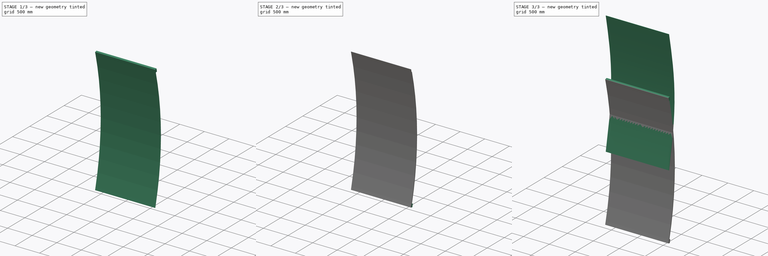
[diagram: build sequence overview — one tinted view per stage of 3, left to right]
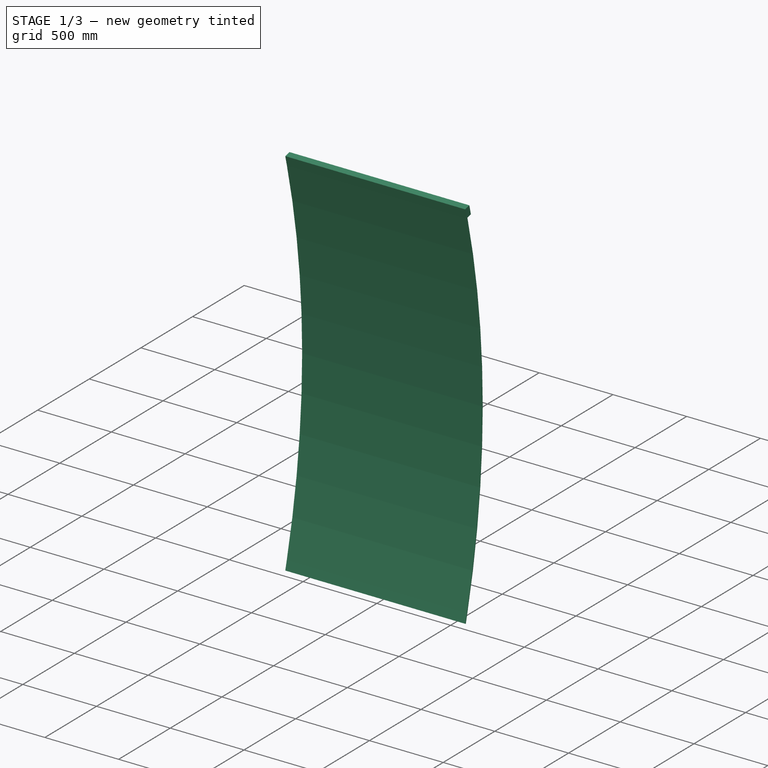
[diagram: stage 1 of 3 — iso view after this stage's code; geometry added in this stage tinted green]
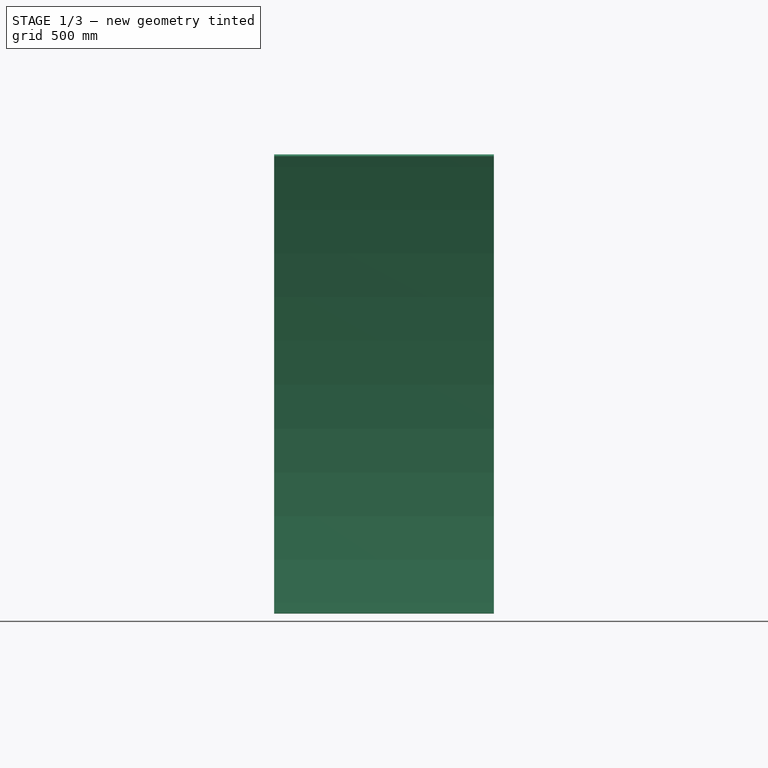
[diagram: stage 1 of 3 — front view after this stage's code; geometry added in this stage tinted green]
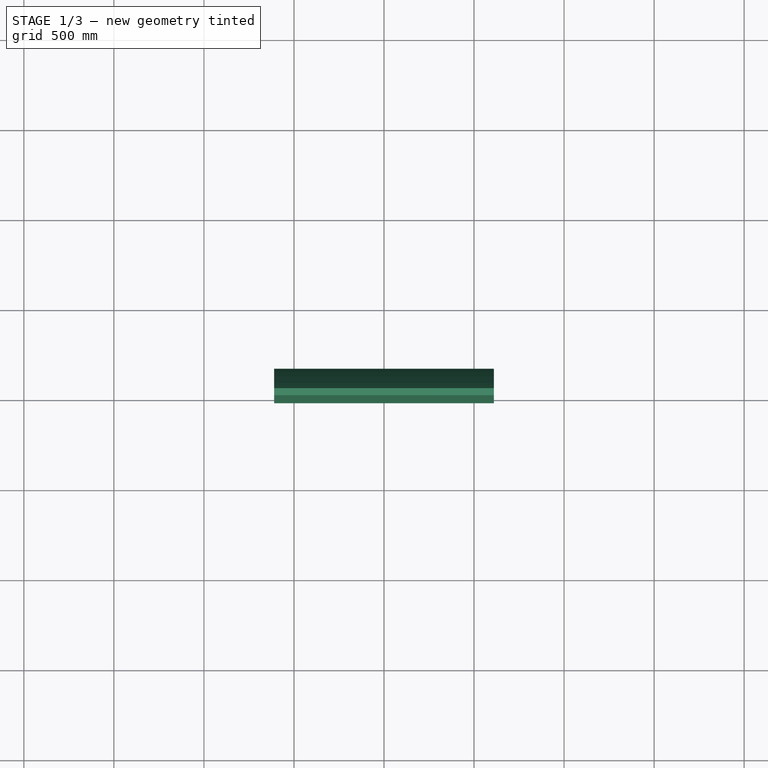
[diagram: stage 1 of 3 — top view after this stage's code; geometry added in this stage tinted green]
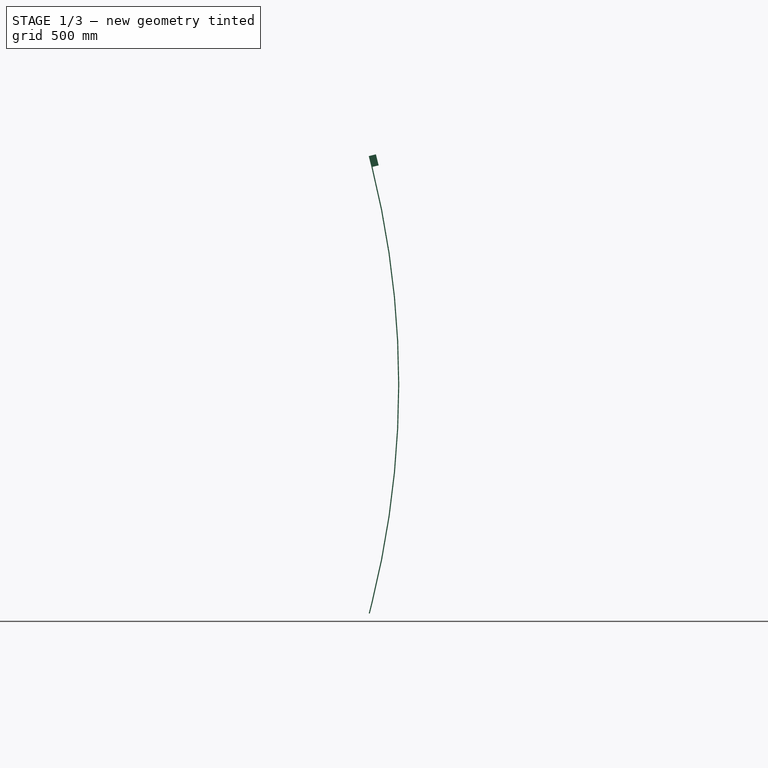
[diagram: stage 1 of 3 — right view after this stage's code; geometry added in this stage tinted green]
FCSTD DOCUMENT  (FreeCAD 0.21R33771 (Git))
Label: hypatia_panel_sinusoid
License: All rights reserved
LicenseURL: https://en.wikipedia.org/wiki/All_rights_reserved
objects: Sketcher::SketchObject×4, PartDesign::Body×4, PartDesign::Pad×3, Part::Mirroring×2, Spreadsheet::Sheet×1, Part::Part2DObjectPython×1, Part::Extrusion×1, Part::Offset×1, Part::Compound×1
note: 20 computed .brp shape members not serialized (recipe doc carries the construction recipe); baked Part::Feature solids carry a one-line shape summary decoded from their .brp

FEATURE [Spreadsheet::Sheet] Spreadsheet  label="d"
  cells = A1='focus; B1(focus)=5000; A2='panel_thickness; B2(panel_thickness)=6; A3='panel_height; B3(panel_height)=2440; A4='panel_width; B4(panel_width)=1220; A5='timber_width; B5(timber_width)=38; A6='timber_height; B6(timber_height)=63; A7='timber_length; B7(timber_length)=1200; A8='arc_length; B8(arc_length)==panel_height - 2 * timber_height; A9='listello_width; B9(listello_width)=30; A10='listello_height; B10(listello_height)=10; A11='angle; B11(angle)==panel_height / focus * 180 / 3.14; A13='ampl; B13(ampl)=100; A14='y; B14='=
FEATURE [Sketcher::SketchObject] Sketch001
  FullyConstrained = true
  MapMode = 5
  Placement = pos=(0,0,0) rot=(0.57735,0.57735,0.57735;2.0944rad)
  Support = -> [YZ_Plane001]
  expr: Constraints[12] = <<d>>.panel_thickness
  expr: Constraints[25] = <<d>>.angle
  expr: Constraints[2] = <<d>>.focus
  expr: Constraints[3] = <<d>>.timber_height
  sketch-geometry (13):
    g0: ArcOfCircle CenterX=-4851.75 CenterY=-9.9e-13 CenterZ=0 NormalX=0 NormalY=0 NormalZ=1 AngleXU=0 Radius=5000 StartAngle=6.03906 EndAngle=6.52731
    g1: LineSegment StartX=0 StartY=1208.53 StartZ=0 EndX=-15.2275 EndY=1269.66 EndZ=0
    g2: LineSegment StartX=9.095e-13 StartY=-1208.53 StartZ=0 EndX=-15.2275 EndY=-1269.66 EndZ=0
    g3: LineSegment StartX=-15.2275 StartY=1269.66 StartZ=0 EndX=-9.40539 EndY=1271.11 EndZ=0
    g4: LineSegment StartX=-9.40539 StartY=1271.11 StartZ=0 EndX=5.8221 EndY=1209.98 EndZ=0
    g5: ArcOfCircle CenterX=-4851.75 CenterY=-9.9e-13 CenterZ=0 NormalX=0 NormalY=0 NormalZ=1 AngleXU=0 Radius=5006 StartAngle=6.03906 EndAngle=6.52731
    g6: LineSegment StartX=-15.2275 StartY=-1269.66 StartZ=0 EndX=-9.40539 EndY=-1271.11 EndZ=0
    g7: LineSegment StartX=-9.40539 StartY=-1271.11 StartZ=0 EndX=5.8221 EndY=-1209.98 EndZ=0
    g8: LineSegment StartX=-4851.75 StartY=-9.9e-13 StartZ=0 EndX=0 EndY=1208.53 EndZ=0
    g9: LineSegment StartX=-4851.75 StartY=-9.9e-13 StartZ=0 EndX=9.095e-13 EndY=-1208.53 EndZ=0
    g10: LineSegment StartX=5.8221 StartY=1209.98 StartZ=0 EndX=39.7843 EndY=1218.44 EndZ=0
    g11: LineSegment StartX=39.7843 StartY=1218.44 StartZ=0 EndX=24.5568 EndY=1279.57 EndZ=0
    g12: LineSegment StartX=24.5568 StartY=1279.57 StartZ=0 EndX=-9.40539 EndY=1271.11 EndZ=0
  constraints (34):
    c: Symmetric(g0,g0,g-1)
    c: PointOnObject(g0,g-2)
    c: Radius(g0) = 5000
    c: Distance(g1) = 63
    c: Tangent(g1,g0) = -1.5708
    c: Coincident(g2,g0)
    c: Symmetric(g2,g1,g-1)
    c: Coincident(g3,g1)
    c: Coincident(g4,g3)
    c: Equal(g4,g1)
    c: Coincident(g5,g0)
    c: Coincident(g5,g4)
    c: Distance(g3) = 6
    c: Coincident(g6,g2)
    c: Coincident(g7,g6)
    c: Coincident(g7,g5)
    c: Coincident(g8,g0)
    c: Coincident(g8,g0)
    c: Coincident(g9,g0)
    c: Coincident(g9,g0)
    c: Perpendicular(g4,g3)
    c: Perpendicular(g1,g3)
    c: Perpendicular(g6,g7)
    c: Perpendicular(g2,g6)
    c: Equal(g7,g2)
    c: Angle(g9,g8) = 0.488248
    c: Coincident(g4,g10)
    c: Coincident(g10,g11)
    c: Coincident(g11,g12)
    c: Coincident(g12,g4)
    c: Perpendicular(g4,g12)
    c: Perpendicular(g11,g12)
    c: Perpendicular(g4,g10)
    c: Distance(g12) = 35
FEATURE [PartDesign::Pad] Pad001
  Direction = (1,-2e-16,3e-16)
  Length = 1220
  Length2 = 10
  Midplane = true
  Placement = pos=(0,0,0) rot=(0.57735,0.57735,0.57735;2.0944rad)
  Profile = -> Sketch001
  ReferenceAxis = -> Sketch001 [N_Axis]
  Type = 0
FEATURE [Sketcher::SketchObject] Sketch
  FullyConstrained = true
  MapMode = 5
  Placement = pos=(0,0,0) rot=(0.57735,0.57735,0.57735;2.0944rad)
  Support = -> [YZ_Plane]
  expr: Constraints[12] = <<d>>.panel_thickness
  expr: Constraints[25] = <<d>>.angle
  expr: Constraints[2] = <<d>>.focus
  expr: Constraints[3] = <<d>>.timber_height
  sketch-geometry (10):
    g0: ArcOfCircle CenterX=-4851.75 CenterY=7.406e-13 CenterZ=0 NormalX=0 NormalY=0 NormalZ=1 AngleXU=0 Radius=5000 StartAngle=6.03906 EndAngle=6.52731
    g1: LineSegment StartX=-9.095e-13 StartY=1208.53 StartZ=0 EndX=-15.2275 EndY=1269.66 EndZ=0
    g2: LineSegment StartX=0 StartY=-1208.53 StartZ=0 EndX=-15.2275 EndY=-1269.66 EndZ=0
    g3: LineSegment StartX=-15.2275 StartY=1269.66 StartZ=0 EndX=-9.40539 EndY=1271.11 EndZ=0
    g4: LineSegment StartX=-9.40539 StartY=1271.11 StartZ=0 EndX=5.8221 EndY=1209.98 EndZ=0
    g5: ArcOfCircle CenterX=-4851.75 CenterY=7.406e-13 CenterZ=0 NormalX=0 NormalY=0 NormalZ=1 AngleXU=0 Radius=5006 StartAngle=6.03906 EndAngle=6.52731
    g6: LineSegment StartX=-15.2275 StartY=-1269.66 StartZ=0 EndX=-9.40539 EndY=-1271.11 EndZ=0
    g7: LineSegment StartX=-9.40539 StartY=-1271.11 StartZ=0 EndX=5.8221 EndY=-1209.98 EndZ=0
    g8: LineSegment StartX=-4851.75 StartY=7.406e-13 StartZ=0 EndX=-9.095e-13 EndY=1208.53 EndZ=0
    g9: LineSegment StartX=-4851.75 StartY=7.406e-13 StartZ=0 EndX=0 EndY=-1208.53 EndZ=0
  constraints (26):
    c: Symmetric(g0,g0,g-1)
    c: PointOnObject(g0,g-2)
    c: Radius(g0) = 5000
    c: Distance(g1) = 63
    c: Tangent(g1,g0) = -1.5708
    c: Coincident(g2,g0)
    c: Symmetric(g2,g1,g-1)
    c: Coincident(g3,g1)
    c: Coincident(g4,g3)
    c: Equal(g4,g1)
    c: Coincident(g5,g0)
    c: Coincident(g5,g4)
    c: Distance(g3) = 6
    c: Coincident(g6,g2)
    c: Coincident(g7,g6)
    c: Coincident(g7,g5)
    c: Coincident(g8,g0)
    c: Coincident(g8,g0)
    c: Coincident(g9,g0)
    c: Coincident(g9,g0)
    c: Perpendicular(g4,g3)
    c: Perpendicular(g1,g3)
    c: Perpendicular(g6,g7)
    c: Perpendicular(g2,g6)
    c: Equal(g7,g2)
    c: Angle(g9,g8) = 0.488248
FEATURE [PartDesign::Pad] Pad
  Direction = (1,-2e-16,3e-16)
  Length = 1220
  Length2 = 10
  Midplane = true
  Placement = pos=(0,0,0) rot=(0.57735,0.57735,0.57735;2.0944rad)
  Profile = -> Sketch
  ReferenceAxis = -> Sketch [N_Axis]
  Type = 0
  expr: Length = <<d>>.panel_width
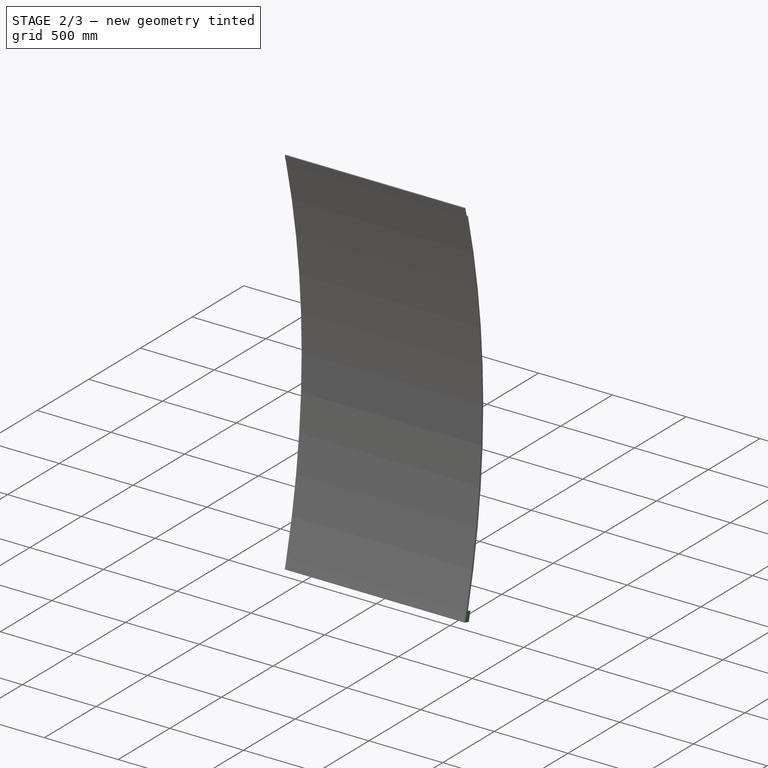
[diagram: stage 2 of 3 — iso view after this stage's code; geometry added in this stage tinted green]
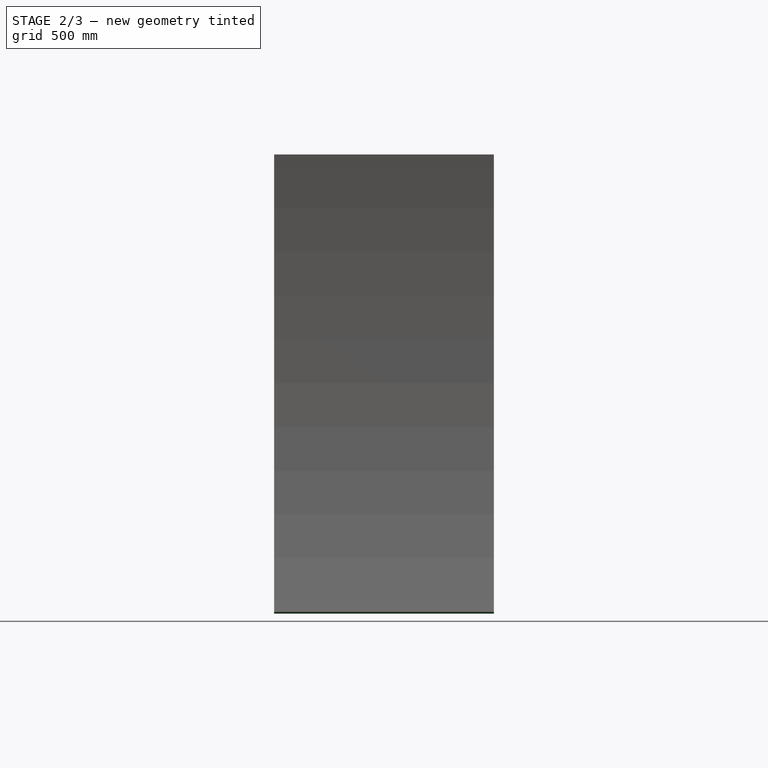
[diagram: stage 2 of 3 — front view after this stage's code; geometry added in this stage tinted green]
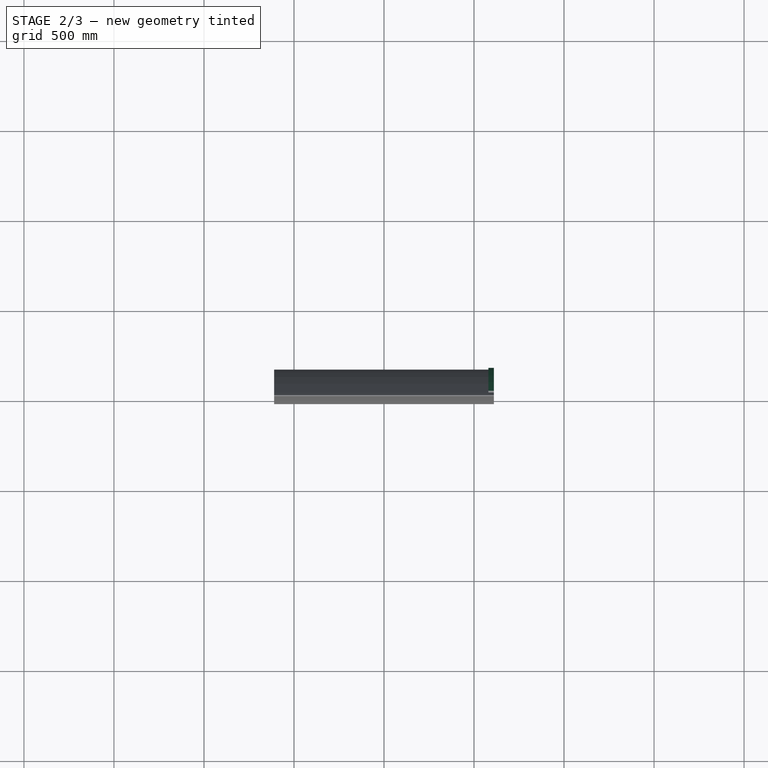
[diagram: stage 2 of 3 — top view after this stage's code; geometry added in this stage tinted green]
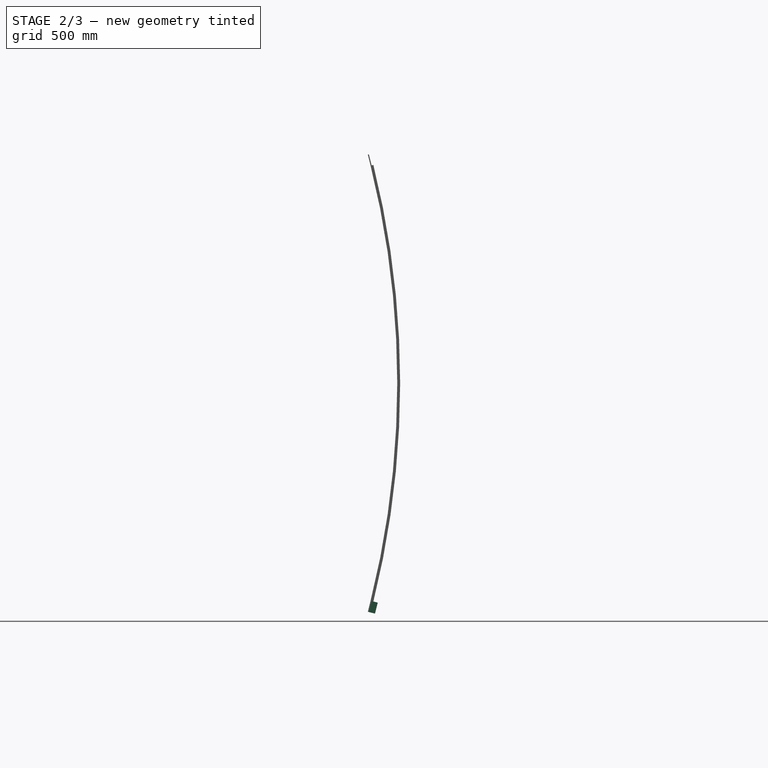
[diagram: stage 2 of 3 — right view after this stage's code; geometry added in this stage tinted green]
FEATURE [PartDesign::Body] Body001  label="batten_top"
  Group = -> [Sketch001,Pad001]
  Origin = -> Origin001
  Tip = -> Pad001
FEATURE [Sketcher::SketchObject] Sketch002
  FullyConstrained = true
  MapMode = 5
  Placement = pos=(0,0,0) rot=(0.57735,0.57735,0.57735;2.0944rad)
  Support = -> [YZ_Plane002]
  expr: Constraints[12] = <<d>>.panel_thickness
  expr: Constraints[25] = <<d>>.angle
  expr: Constraints[2] = <<d>>.focus
  expr: Constraints[3] = <<d>>.timber_height
  sketch-geometry (13):
    g0: ArcOfCircle CenterX=-4851.75 CenterY=-4.187e-13 CenterZ=0 NormalX=0 NormalY=0 NormalZ=1 AngleXU=0 Radius=5000 StartAngle=6.03906 EndAngle=6.52731
    g1: LineSegment StartX=-9.095e-13 StartY=1208.53 StartZ=0 EndX=-15.2275 EndY=1269.66 EndZ=0
    g2: LineSegment StartX=0 StartY=-1208.53 StartZ=0 EndX=-15.2275 EndY=-1269.66 EndZ=0
    g3: LineSegment StartX=-15.2275 StartY=1269.66 StartZ=0 EndX=-9.40539 EndY=1271.11 EndZ=0
    g4: LineSegment StartX=-9.40539 StartY=1271.11 StartZ=0 EndX=5.8221 EndY=1209.98 EndZ=0
    g5: ArcOfCircle CenterX=-4851.75 CenterY=-4.187e-13 CenterZ=0 NormalX=0 NormalY=0 NormalZ=1 AngleXU=0 Radius=5006 StartAngle=6.03906 EndAngle=6.52731
    g6: LineSegment StartX=-15.2275 StartY=-1269.66 StartZ=0 EndX=-9.40539 EndY=-1271.11 EndZ=0
    g7: LineSegment StartX=-9.40539 StartY=-1271.11 StartZ=0 EndX=5.8221 EndY=-1209.98 EndZ=0
    g8: LineSegment StartX=-4851.75 StartY=-4.187e-13 StartZ=0 EndX=-9.095e-13 EndY=1208.53 EndZ=0
    g9: LineSegment StartX=-4851.75 StartY=-4.187e-13 StartZ=0 EndX=0 EndY=-1208.53 EndZ=0
    g10: ArcOfCircle CenterX=-4851.75 CenterY=-4.187e-13 CenterZ=0 NormalX=0 NormalY=0 NormalZ=1 AngleXU=0 Radius=5016 StartAngle=6.03906 EndAngle=6.52731
    g11: LineSegment StartX=5.8221 StartY=1209.98 StartZ=0 EndX=15.5256 EndY=1212.4 EndZ=0
    g12: LineSegment StartX=5.8221 StartY=-1209.98 StartZ=0 EndX=15.5256 EndY=-1212.4 EndZ=0
  constraints (34):
    c: Symmetric(g0,g0,g-1)
    c: PointOnObject(g0,g-2)
    c: Radius(g0) = 5000
    c: Distance(g1) = 63
    c: Tangent(g1,g0) = -1.5708
    c: Coincident(g2,g0)
    c: Symmetric(g2,g1,g-1)
    c: Coincident(g3,g1)
    c: Coincident(g4,g3)
    c: Equal(g4,g1)
    c: Coincident(g5,g0)
    c: Coincident(g5,g4)
    c: Distance(g3) = 6
    c: Coincident(g6,g2)
    c: Coincident(g7,g6)
    c: Coincident(g7,g5)
    c: Coincident(g8,g0)
    c: Coincident(g8,g0)
    c: Coincident(g9,g0)
    c: Coincident(g9,g0)
    c: Perpendicular(g4,g3)
    c: Perpendicular(g1,g3)
    c: Perpendicular(g6,g7)
    c: Perpendicular(g2,g6)
    c: Equal(g7,g2)
    c: Angle(g9,g8) = 0.488248
    c: Coincident(g10,g5)
    c: Coincident(g11,g5)
    c: Coincident(g11,g10)
    c: PointOnObject(g10,g8)
    c: Distance(g11) = 10
    c: Coincident(g12,g5)
    c: Coincident(g12,g10)
    c: PointOnObject(g10,g9)
FEATURE [PartDesign::Pad] Pad002
  Direction = (1,-2e-16,3e-16)
  Length = 30
  Length2 = 10
  Placement = pos=(0,0,0) rot=(0.57735,0.57735,0.57735;2.0944rad)
  Profile = -> Sketch002
  ReferenceAxis = -> Sketch002 [N_Axis]
  Type = 0
FEATURE [PartDesign::Body] Body002  label="Body"
  Group = -> [Sketch002,Pad002]
  Origin = -> Origin002
  Placement = pos=(-610,0,0) rot=(0,0,1;0rad)
  Tip = -> Pad002
FEATURE [Part::Mirroring] Mirror001  label="Body (mirrored)"
  Base = (0,0,0)
  Normal = (1,0,0)
  Source = -> Body002
FEATURE [Part::Mirroring] Mirror  label="batten_top (mirrored)"
  Base = (0,0,0)
  Normal = (0,0,1)
  Source = -> Body001
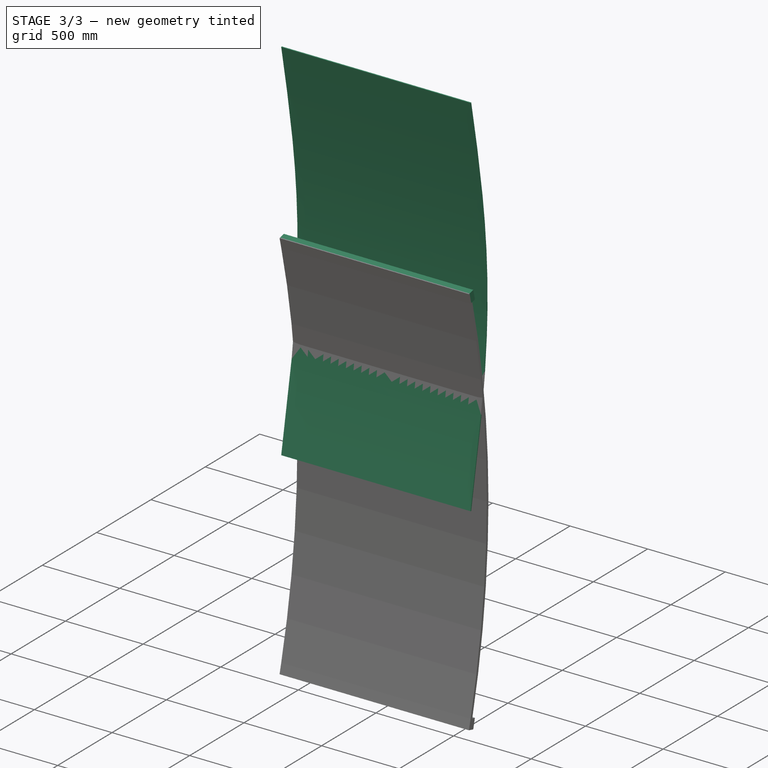
[diagram: stage 3 of 3 — iso view after this stage's code; geometry added in this stage tinted green]
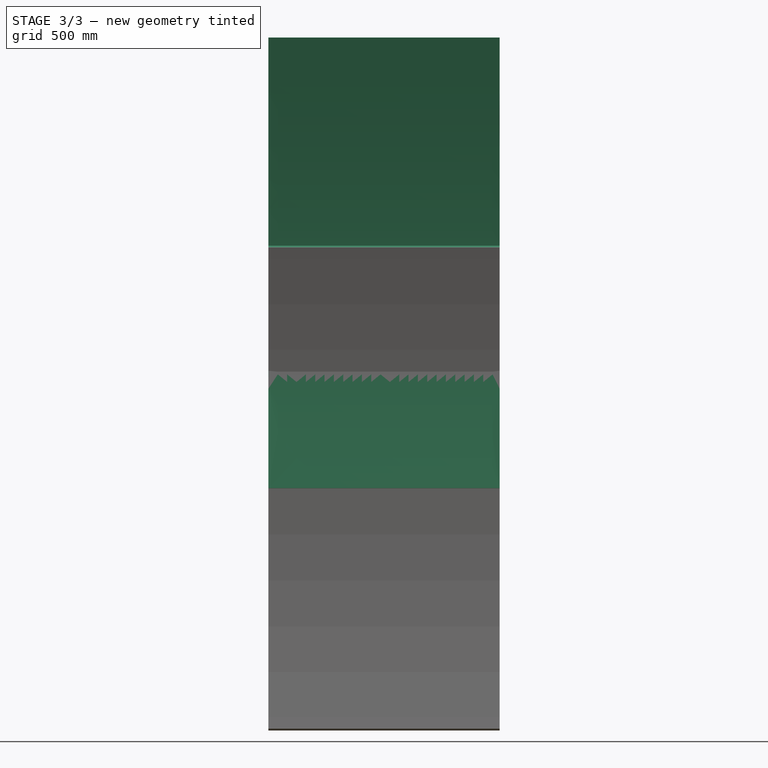
[diagram: stage 3 of 3 — front view after this stage's code; geometry added in this stage tinted green]
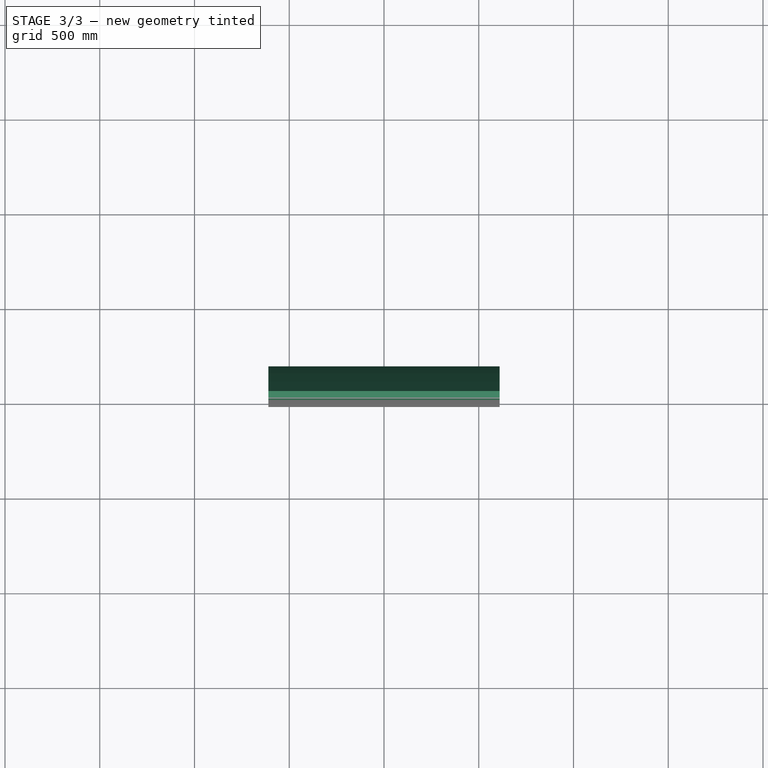
[diagram: stage 3 of 3 — top view after this stage's code; geometry added in this stage tinted green]
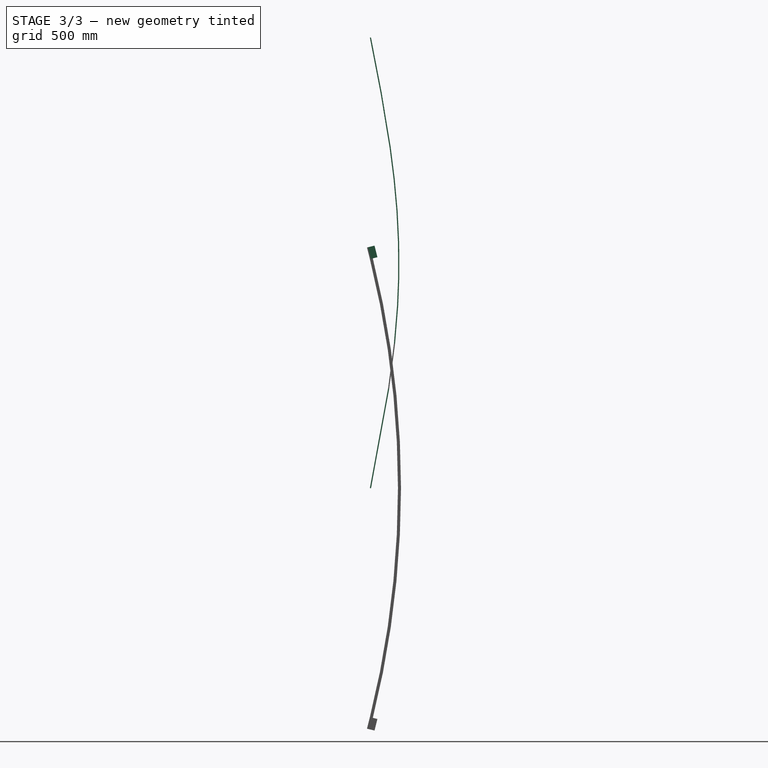
[diagram: stage 3 of 3 — right view after this stage's code; geometry added in this stage tinted green]
FEATURE [Part::Part2DObjectPython] BSpline  # Draft 2D object (typed FeaturePython)
  Area = 0
  Closed = false
  MakeFace = true
  Parameterization = 1
  Points = (2378) [(0,0,0),(1,0.198249,0),(2,0.396498,0),(3,0.594747,0),(4,0.792994,0),(5,0.99124,0),(6,1.18948,0),(7,1.38773,0),(8,1.58597,0),(9,1.7842,0),+2368 more]
FEATURE [Part::Extrusion] Extrude
  Base = -> BSpline
  Dir = (0,0,1)
  DirMode = 2
  FaceMakerClass = Part::FaceMakerBullseye
  LengthFwd = 1220
  LengthRev = 0
  Placement = pos=(0,0,0) rot=(0,0,-1;1.5708rad)
  Solid = false
  Symmetric = false
FEATURE [Part::Offset] Offset  label="hypatia_sinusoid"
  Fill = true
  Intersection = false
  Join = 0
  Mode = 0
  Placement = pos=(610,0,0) rot=(0.57735,0.57735,-0.57735;4.18879rad)
  SelfIntersection = false
  Source = -> Extrude
  Value = 6
FEATURE [PartDesign::Body] Body  label="panel_curved"
  Group = -> [Sketch,Pad]
  Origin = -> Origin
  Tip = -> Pad
FEATURE [Part::Compound] Compound  label="curved_reflector_parabolic"
  Links = -> [Body,Mirror,Mirror001,Body001,Body002]
FEATURE [Sketcher::SketchObject] Sketch003
  FullyConstrained = true
  MapMode = 5
  Placement = pos=(0,0,0) rot=(0.57735,0.57735,0.57735;2.0944rad)
  Support = -> [YZ_Plane003]
FEATURE [PartDesign::Body] Body003
  Group = -> [Sketch003]
  Origin = -> Origin003
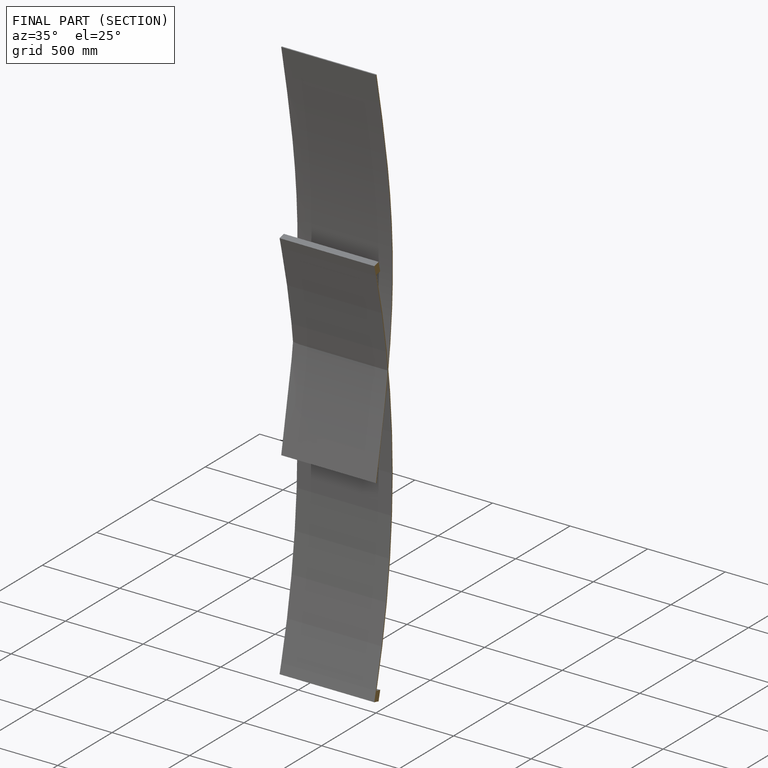
[diagram: finished part — half-section view (interior)]
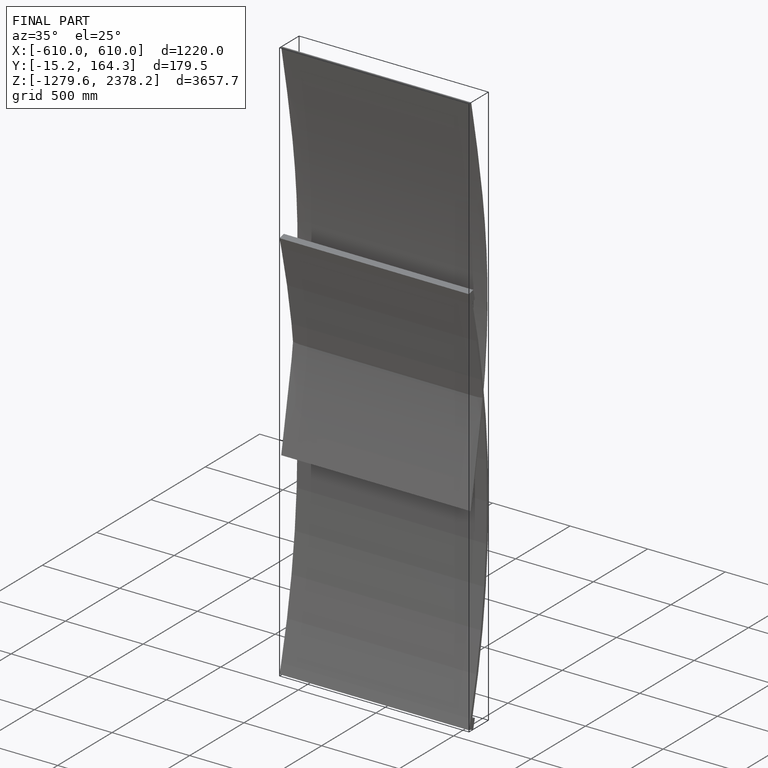
[diagram: finished part — iso view with bounding-box wireframe]
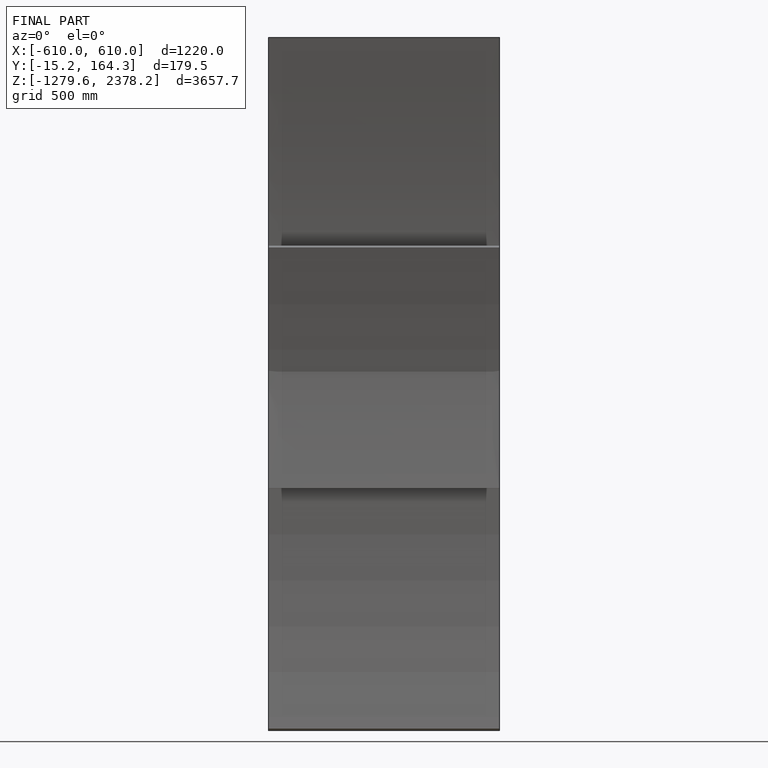
[diagram: finished part — front view with bounding-box wireframe]
